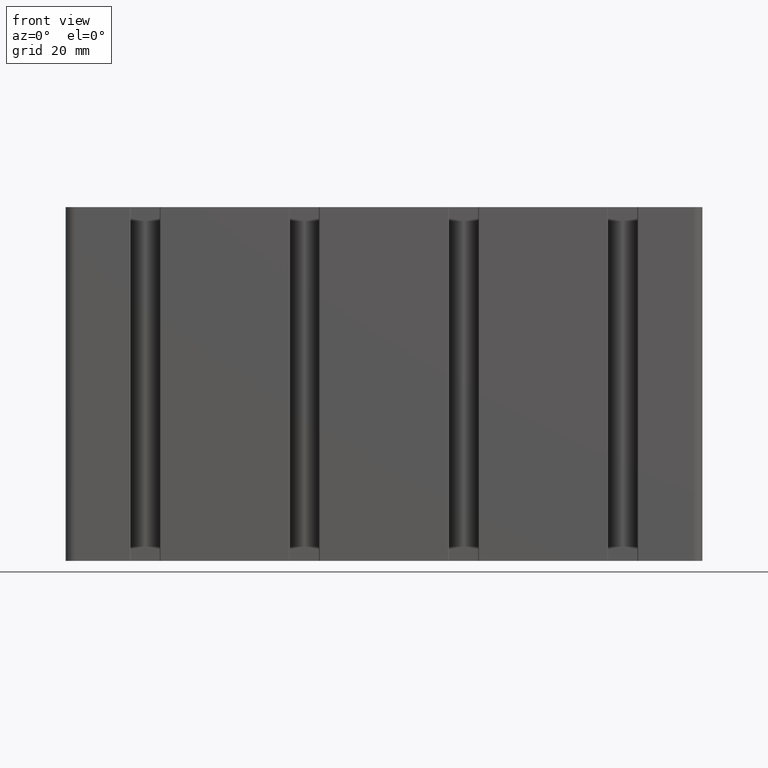
[diagram: clean part render]
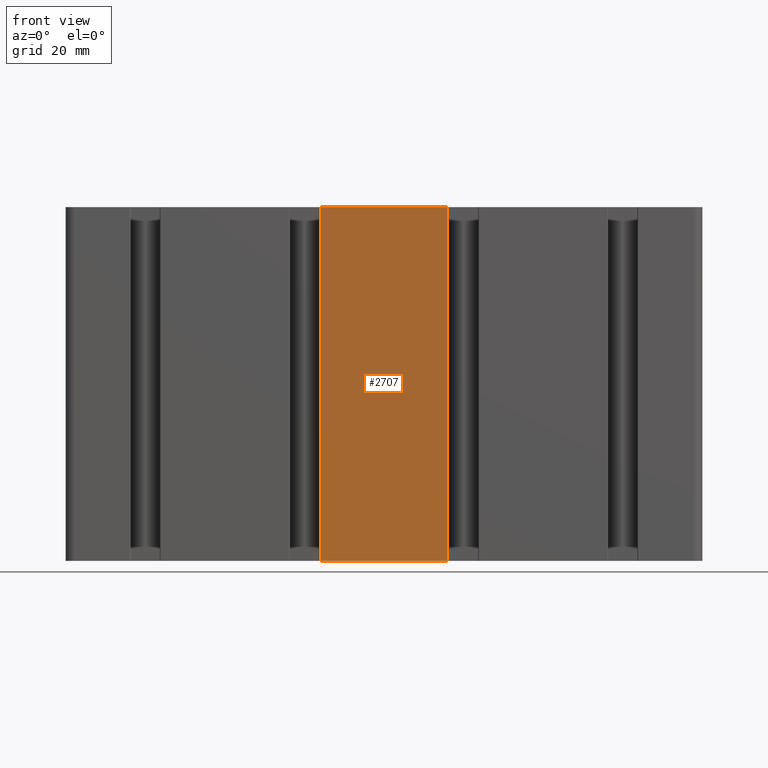
[diagram: same view with one face highlighted and labeled with its STEP entity id]
A machine part, front view. The second image highlights one B-rep face of the part: STEP entity #2707.
In plain terms, the highlighted planar face has unit normal (0, -1, 0).
Its self-contained STEP definition (entity closure, byte-faithful):
#311=FACE_OUTER_BOUND('',#447,.T.);
#447=EDGE_LOOP('',(#2191,#2192,#2193,#2194));
#579=LINE('',#4115,#865);
#700=LINE('',#4459,#986);
#727=LINE('',#4525,#1013);
#728=LINE('',#4526,#1014);
#865=VECTOR('',#3309,100.);
#986=VECTOR('',#3640,100.);
#1013=VECTOR('',#3705,36.0999999999999);
#1014=VECTOR('',#3706,36.0999999999999);
#1152=VERTEX_POINT('',#4109);
#1154=VERTEX_POINT('',#4113);
#1271=VERTEX_POINT('',#4456);
#1272=VERTEX_POINT('',#4458);
#1471=EDGE_CURVE('',#1152,#1154,#579,.T.);
#1641=EDGE_CURVE('',#1271,#1272,#700,.T.);
#1675=EDGE_CURVE('',#1272,#1154,#727,.T.);
#1676=EDGE_CURVE('',#1271,#1152,#728,.T.);
#2191=ORIENTED_EDGE('',*,*,#1471,.T.);
#2192=ORIENTED_EDGE('',*,*,#1675,.F.);
#2193=ORIENTED_EDGE('',*,*,#1641,.F.);
#2194=ORIENTED_EDGE('',*,*,#1676,.T.);
#2575=PLANE('',#2953);
#2707=ADVANCED_FACE('',(#311),#2575,.T.);
#2953=AXIS2_PLACEMENT_3D('',#4524,#3703,#3704);
#3309=DIRECTION('',(0.,0.,-1.));
#3640=DIRECTION('',(0.,0.,-1.));
#3703=DIRECTION('center_axis',(0.,-1.,0.));
#3704=DIRECTION('ref_axis',(1.,0.,0.));
#3705=DIRECTION('',(-1.,0.,0.));
#3706=DIRECTION('',(-1.,0.,0.));
#4109=CARTESIAN_POINT('',(-18.0537196466436,-9.25000000000001,100.));
#4113=CARTESIAN_POINT('',(-18.0537196466436,-9.25000000000001,0.));
#4115=CARTESIAN_POINT('',(-18.0537196466437,-9.25,0.));
#4456=CARTESIAN_POINT('',(18.0462803533563,-9.25000000000004,100.));
#4458=CARTESIAN_POINT('',(18.0462803533563,-9.25000000000004,0.));
#4459=CARTESIAN_POINT('',(18.0462803533564,-9.25,0.));
#4524=CARTESIAN_POINT('Origin',(-87.5,-9.25,0.));
#4525=CARTESIAN_POINT('',(-43.75,-9.25,0.));
#4526=CARTESIAN_POINT('',(-43.75,-9.25,100.));